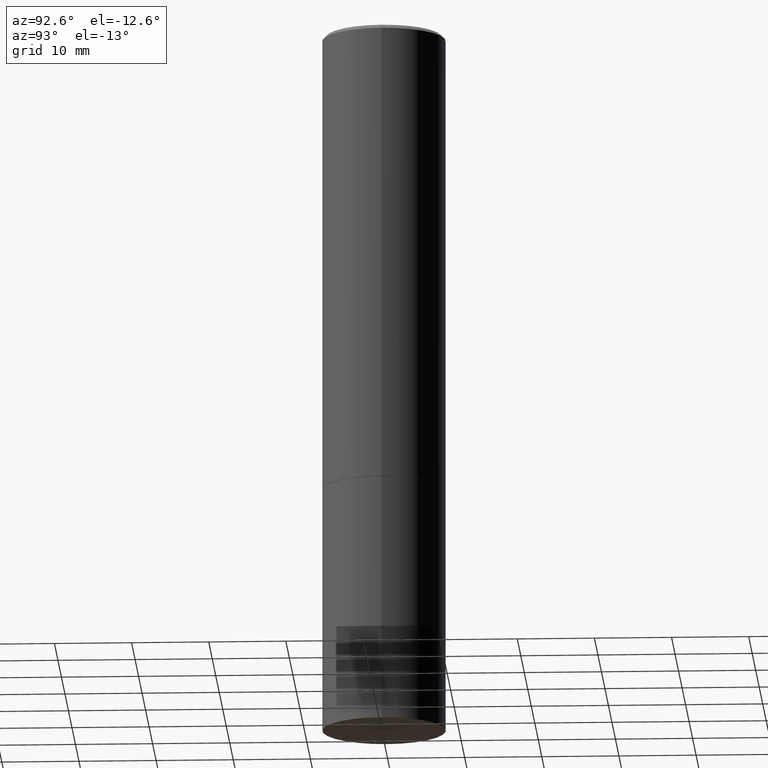
[diagram: clean part render]
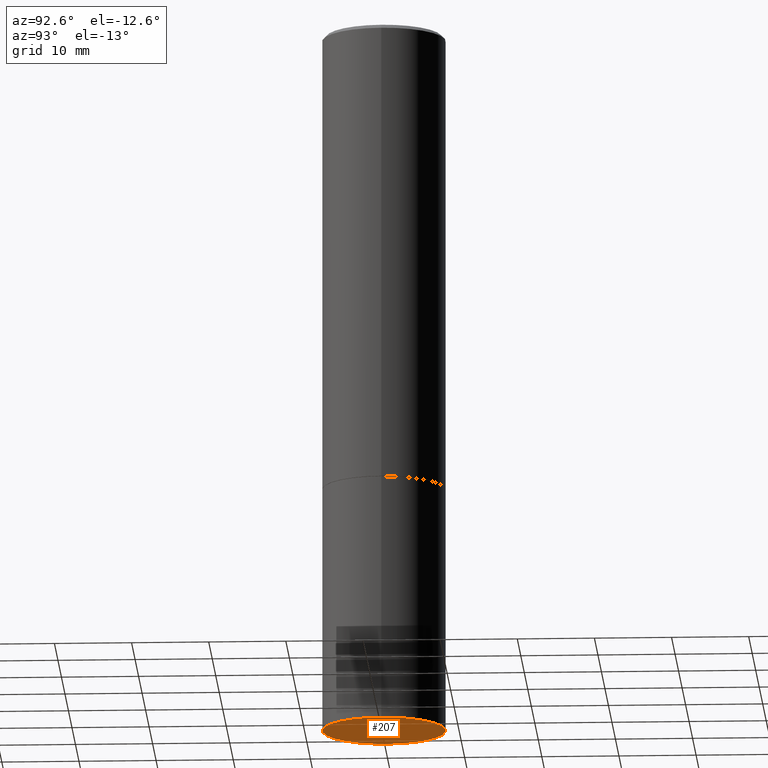
[diagram: same view with one face highlighted and labeled with its STEP entity id]
A machine part, auxiliary view. The second image highlights one B-rep face of the part: STEP entity #207.
In plain terms, the highlighted planar face has unit normal (0, -0, -1).
Its self-contained STEP definition (entity closure, byte-faithful):
#2 = AXIS2_PLACEMENT_3D ( 'NONE', #160, #349, #328 ) ;
#66 = EDGE_LOOP ( 'NONE', ( #175, #304 ) ) ;
#70 = CARTESIAN_POINT ( 'NONE',  ( 2.199284095337378223E-15, 0.3149499999999873512, -3.622000000000000774 ) ) ;
#71 = DIRECTION ( 'NONE',  ( -1.000000000000000000, 6.982962677686265922E-15, -4.876176775795935793E-29 ) ) ;
#97 = PLANE ( 'NONE',  #318 ) ;
#155 = DIRECTION ( 'NONE',  ( 1.000000000000000000, -6.982962677686263555E-15, 0.000000000000000000 ) ) ;
#160 = CARTESIAN_POINT ( 'NONE',  ( 8.857488016002564476E-29, -1.264614540928987199E-14, -3.621999999999999886 ) ) ;
#167 = VERTEX_POINT ( 'NONE', #244 ) ;
#175 = ORIENTED_EDGE ( 'NONE', *, *, #290, .F. ) ;
#207 = ADVANCED_FACE ( 'NONE', ( #309 ), #97, .T. ) ;
#211 = DIRECTION ( 'NONE',  ( 2.438088387897960049E-29, -3.491481338843145188E-15, -1.000000000000000000 ) ) ;
#216 = CIRCLE ( 'NONE', #2, 0.3149500000000000077 ) ;
#244 = CARTESIAN_POINT ( 'NONE',  ( -0.3149500000000000077, -8.209006967676139823E-15, -3.621999999999999886 ) ) ;
#255 = CARTESIAN_POINT ( 'NONE',  ( 0.3149500000000000077, -1.484542950462716186E-14, -3.621999999999999886 ) ) ;
#271 = AXIS2_PLACEMENT_3D ( 'NONE', #352, #347, #155 ) ;
#290 = EDGE_CURVE ( 'NONE', #343, #167, #216, .T. ) ;
#304 = ORIENTED_EDGE ( 'NONE', *, *, #363, .F. ) ;
#309 = FACE_OUTER_BOUND ( 'NONE', #66, .T. ) ;
#318 = AXIS2_PLACEMENT_3D ( 'NONE', #70, #211, #71 ) ;
#328 = DIRECTION ( 'NONE',  ( 1.000000000000000000, -6.982962677686263555E-15, 0.000000000000000000 ) ) ;
#343 = VERTEX_POINT ( 'NONE', #255 ) ;
#347 = DIRECTION ( 'NONE',  ( -2.445468806185136597E-29, 3.491481338843145583E-15, 1.000000000000000000 ) ) ;
#349 = DIRECTION ( 'NONE',  ( -2.445468806185136597E-29, 3.491481338843145583E-15, 1.000000000000000000 ) ) ;
#352 = CARTESIAN_POINT ( 'NONE',  ( 8.857488016002564476E-29, -1.264614540928987199E-14, -3.621999999999999886 ) ) ;
#358 = CIRCLE ( 'NONE', #271, 0.3149500000000000077 ) ;
#363 = EDGE_CURVE ( 'NONE', #167, #343, #358, .T. ) ;